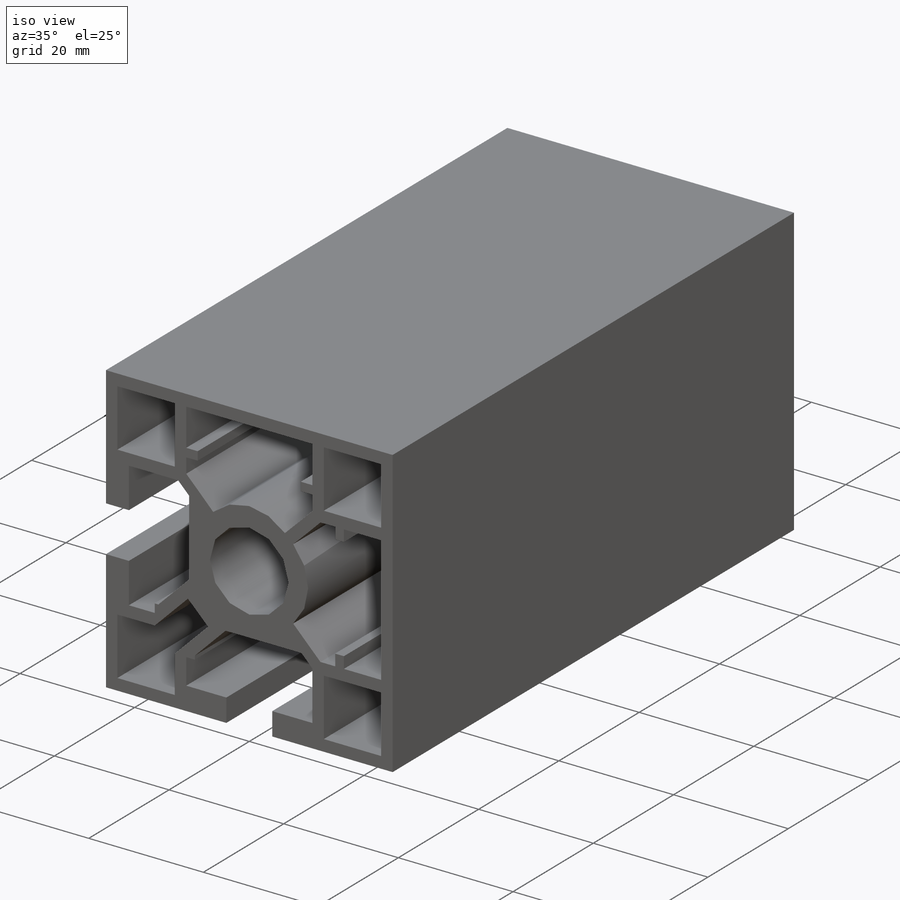
[diagram: iso view]
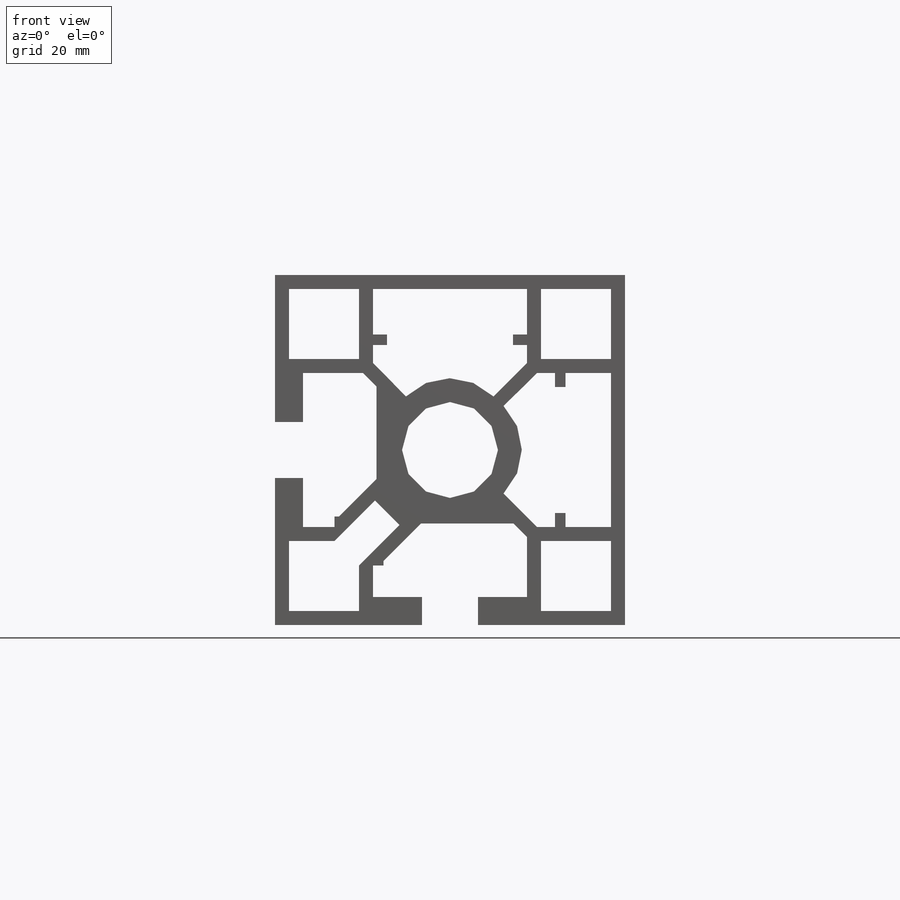
[diagram: front view]
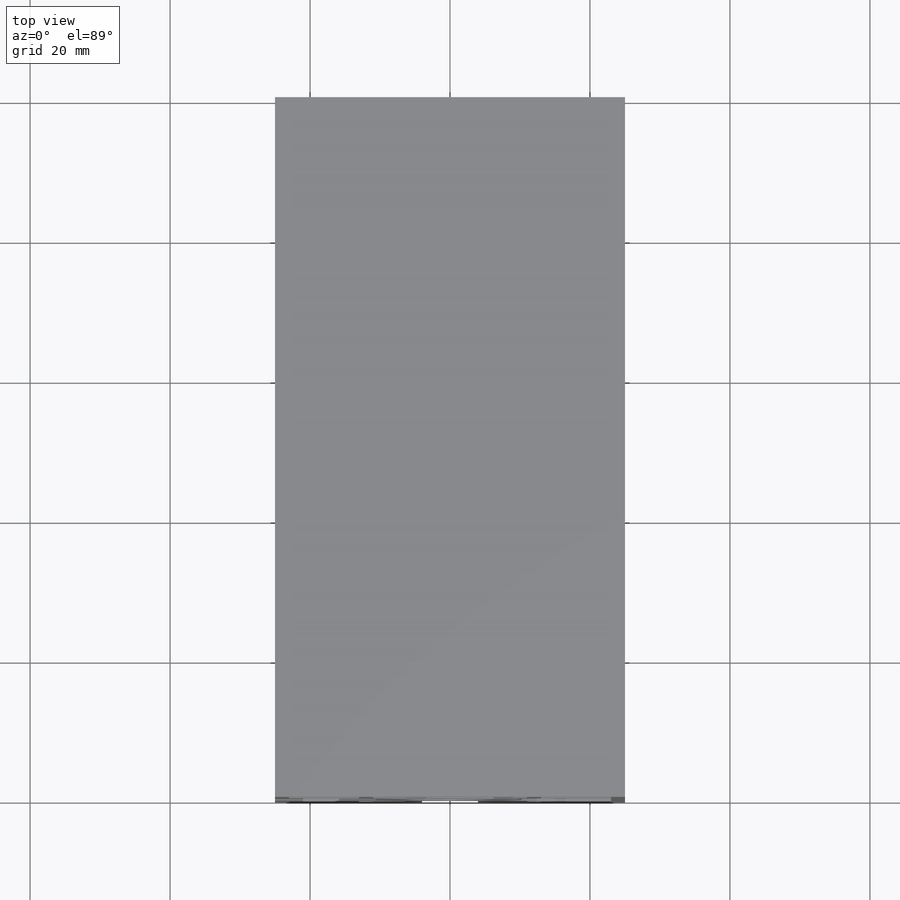
[diagram: top view]
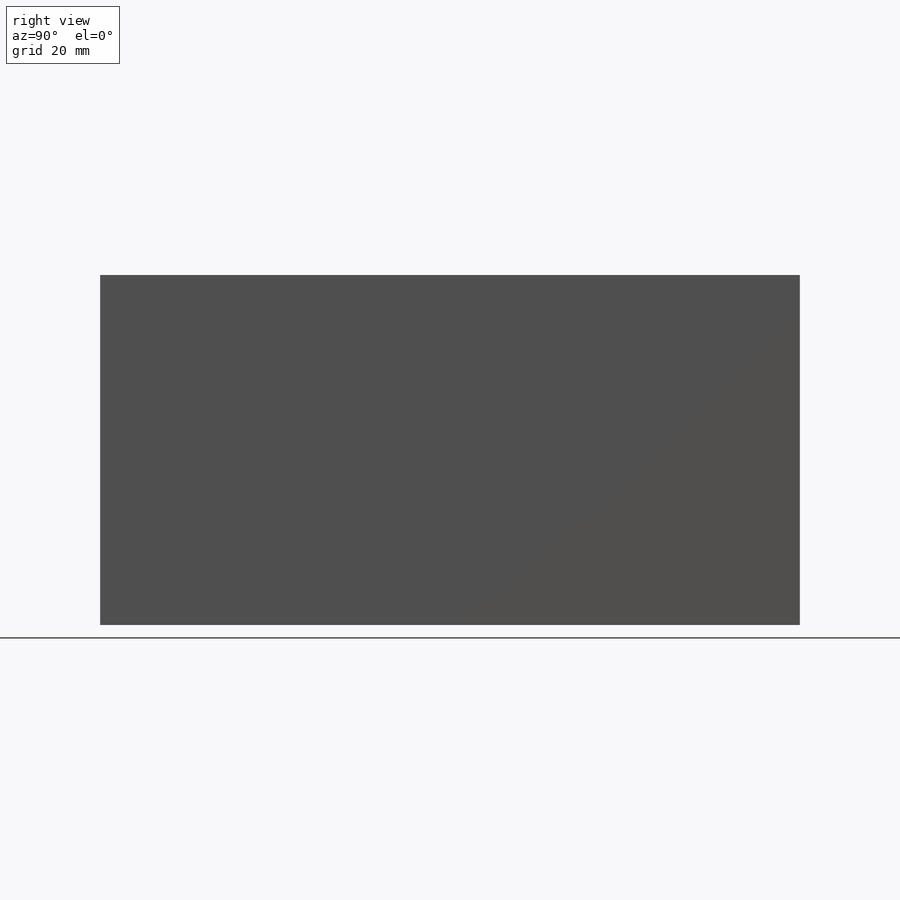
[diagram: right view]
SOLIDWORKS PART (.sldprt)
format: sldprt  version: not decoded by parser v0  size: 229,888 bytes
history: native  units: mm
features: sketch x5, extrude x3, cut_extrude x2, material x1, pattern_circular x1 (+12 scaffold rows collapsed)
feature tree (24):
  scaffold x12  (default folders/planes/origin — collapsed)
  material  "Material <not specified>"
  sketch  "A01-7"
  extrude  "Extrude1"  Depth=100mm
  sketch  "Sketch1"
  cut_extrude  "Cut-Extrude1"  [1 undecoded]
  sketch  "Sketch2"  dims[D1=~9.085786mm]
  cut_extrude  "Cut-Extrude2"  [1 undecoded]
  pattern_circular  "CirPattern2"  Count=2 Angle=270deg
  sketch  "Sketch3"  dims[D1=8.5mm D2=2.0mm D3=2.0mm D4=1.5mm]
  extrude  "Extrude3"  [1 undecoded]
  sketch  "Sketch4"  dims[D1=1.5mm D2=2.0mm D3=2.0mm D4=8.5mm]
  extrude  "Extrude4"  [1 undecoded]
decode coverage: 5 of 11 modeling features carry decoded parameters
note: ~ marks probable driven/reference dimensions
note: 4 parameter values undecoded
summary: no parameter record found for 4 features
note: suppression state not decoded; provenance and decode notes live in map.json
